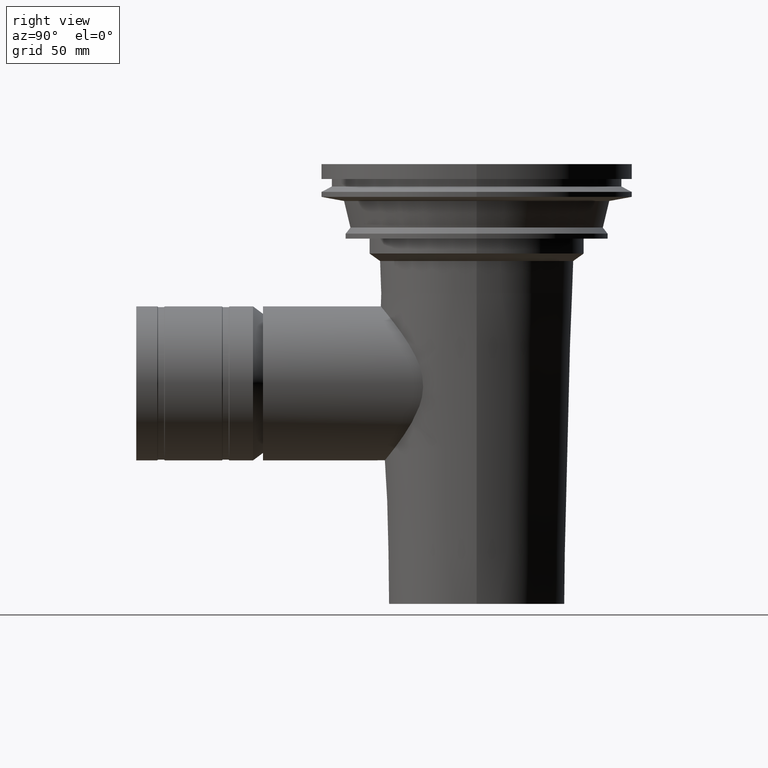
[diagram: clean part render]
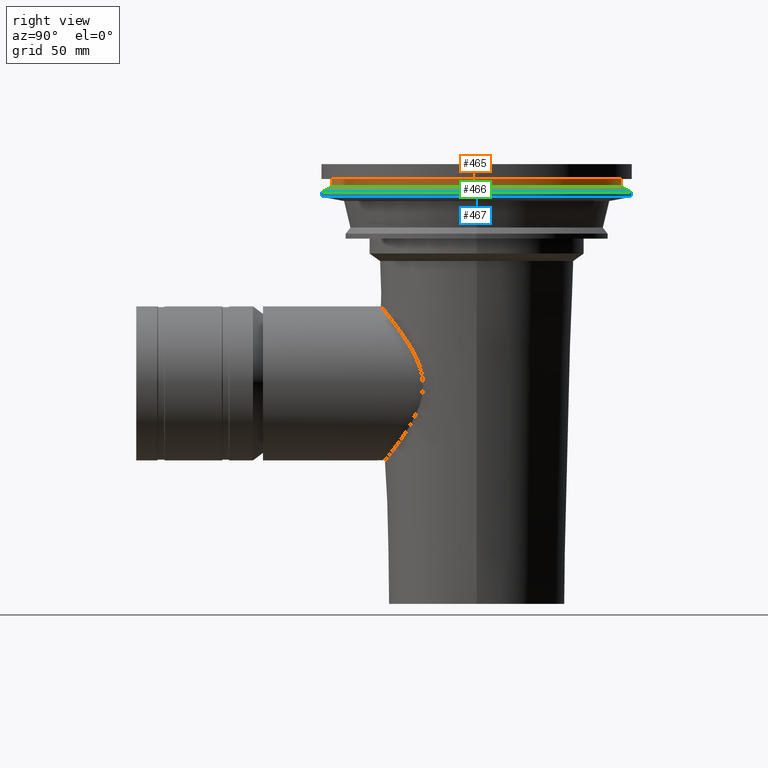
[diagram: same view with three faces highlighted in distinct colors, each labeled with its STEP entity id]
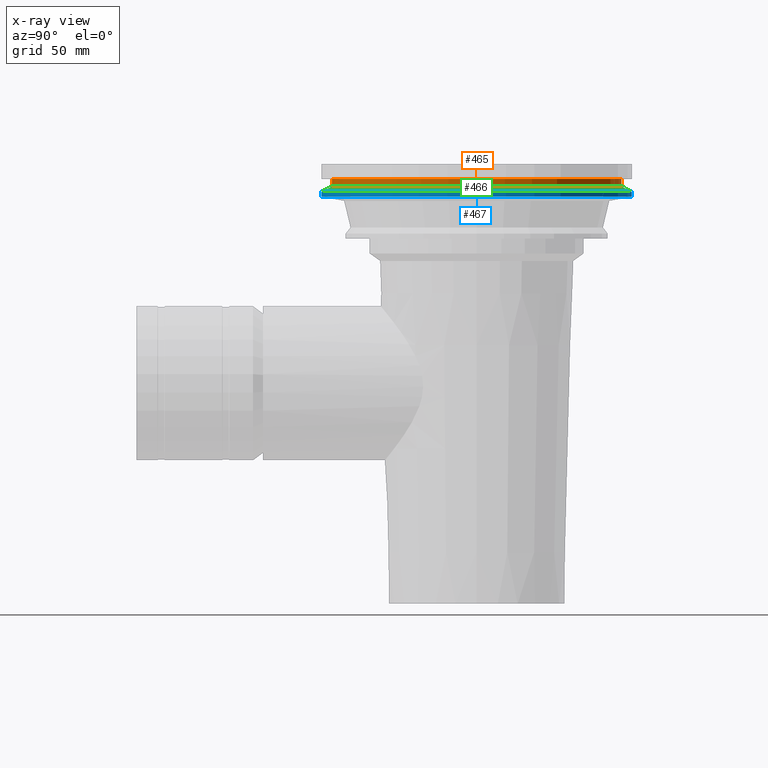
[diagram: x-ray of the same camera — body ghosted, the three highlighted faces saturated]
A machine part, right view with three faces highlighted in distinct colors.
The next image is the same camera in x-ray (body ghosted, the three faces saturated) — at least one of them is partly hidden behind the body in this view.
Their STEP definitions:

[orange] entity #465 — the highlighted cylindrical surface (bore or boss wall) has radius 58.252 mm, axis along (0, 0, 1).
#82=ORIENTED_EDGE('',*,*,#155,.T.);
#83=ORIENTED_EDGE('',*,*,#154,.F.);
#154=EDGE_CURVE('',#197,#197,#238,.T.);
#155=EDGE_CURVE('',#198,#198,#239,.T.);
#197=VERTEX_POINT('',#914);
#198=VERTEX_POINT('',#917);
#238=CIRCLE('',#538,58.252);
#239=CIRCLE('',#540,58.252);
#295=EDGE_LOOP('',(#82));
#296=EDGE_LOOP('',(#83));
#381=FACE_BOUND('',#295,.T.);
#382=FACE_BOUND('',#296,.T.);
#439=CYLINDRICAL_SURFACE('',#539,58.252);
#465=ADVANCED_FACE('',(#381,#382),#439,.T.);
#538=AXIS2_PLACEMENT_3D('',#913,#657,#658);
#539=AXIS2_PLACEMENT_3D('',#915,#659,#660);
#540=AXIS2_PLACEMENT_3D('',#916,#661,#662);
#657=DIRECTION('',(0.,0.,1.));
#658=DIRECTION('',(1.,0.,0.));
#659=DIRECTION('',(0.,0.,1.));
#660=DIRECTION('',(1.,0.,0.));
#661=DIRECTION('',(0.,0.,1.));
#662=DIRECTION('',(1.,0.,0.));
#913=CARTESIAN_POINT('',(0.,0.,-6.));
#914=CARTESIAN_POINT('',(58.252,0.,-6.));
#915=CARTESIAN_POINT('',(0.,0.,50.));
#916=CARTESIAN_POINT('',(0.,0.,-9.));
#917=CARTESIAN_POINT('',(58.252,0.,-9.));

[blue] entity #467 — the highlighted cylindrical surface (bore or boss wall) has radius 62.5 mm, axis along (0, 0, 1).
#86=ORIENTED_EDGE('',*,*,#157,.T.);
#87=ORIENTED_EDGE('',*,*,#156,.F.);
#156=EDGE_CURVE('',#199,#199,#240,.T.);
#157=EDGE_CURVE('',#200,#200,#241,.T.);
#199=VERTEX_POINT('',#920);
#200=VERTEX_POINT('',#923);
#240=CIRCLE('',#542,62.5);
#241=CIRCLE('',#544,62.5);
#299=EDGE_LOOP('',(#86));
#300=EDGE_LOOP('',(#87));
#385=FACE_BOUND('',#299,.T.);
#386=FACE_BOUND('',#300,.T.);
#440=CYLINDRICAL_SURFACE('',#543,62.5);
#467=ADVANCED_FACE('',(#385,#386),#440,.T.);
#542=AXIS2_PLACEMENT_3D('',#919,#665,#666);
#543=AXIS2_PLACEMENT_3D('',#921,#667,#668);
#544=AXIS2_PLACEMENT_3D('',#922,#669,#670);
#665=DIRECTION('',(0.,0.,1.));
#666=DIRECTION('',(1.,0.,0.));
#667=DIRECTION('',(0.,0.,1.));
#668=DIRECTION('',(1.,0.,0.));
#669=DIRECTION('',(0.,0.,1.));
#670=DIRECTION('',(1.,0.,0.));
#919=CARTESIAN_POINT('',(0.,0.,-11.1836440954432));
#920=CARTESIAN_POINT('',(62.5,0.,-11.1836440954432));
#921=CARTESIAN_POINT('',(0.,0.,50.));
#922=CARTESIAN_POINT('',(0.,0.,-13.184));
#923=CARTESIAN_POINT('',(62.5,0.,-13.184));

[green] entity #466 — the highlighted conical surface has half-angle 62.795 deg.
#34=CONICAL_SURFACE('',#541,58.252,1.09597950378984);
#84=ORIENTED_EDGE('',*,*,#156,.T.);
#85=ORIENTED_EDGE('',*,*,#155,.F.);
#155=EDGE_CURVE('',#198,#198,#239,.T.);
#156=EDGE_CURVE('',#199,#199,#240,.T.);
#198=VERTEX_POINT('',#917);
#199=VERTEX_POINT('',#920);
#239=CIRCLE('',#540,58.252);
#240=CIRCLE('',#542,62.5);
#297=EDGE_LOOP('',(#84));
#298=EDGE_LOOP('',(#85));
#383=FACE_BOUND('',#297,.T.);
#384=FACE_BOUND('',#298,.T.);
#466=ADVANCED_FACE('',(#383,#384),#34,.T.);
#540=AXIS2_PLACEMENT_3D('',#916,#661,#662);
#541=AXIS2_PLACEMENT_3D('',#918,#663,#664);
#542=AXIS2_PLACEMENT_3D('',#919,#665,#666);
#661=DIRECTION('',(0.,0.,1.));
#662=DIRECTION('',(1.,0.,0.));
#663=DIRECTION('',(0.,0.,-1.));
#664=DIRECTION('',(-1.,0.,0.));
#665=DIRECTION('',(0.,0.,1.));
#666=DIRECTION('',(1.,0.,0.));
#916=CARTESIAN_POINT('',(0.,0.,-9.));
#917=CARTESIAN_POINT('',(58.252,0.,-9.));
#918=CARTESIAN_POINT('',(0.,0.,-9.));
#919=CARTESIAN_POINT('',(0.,0.,-11.1836440954432));
#920=CARTESIAN_POINT('',(62.5,0.,-11.1836440954432));